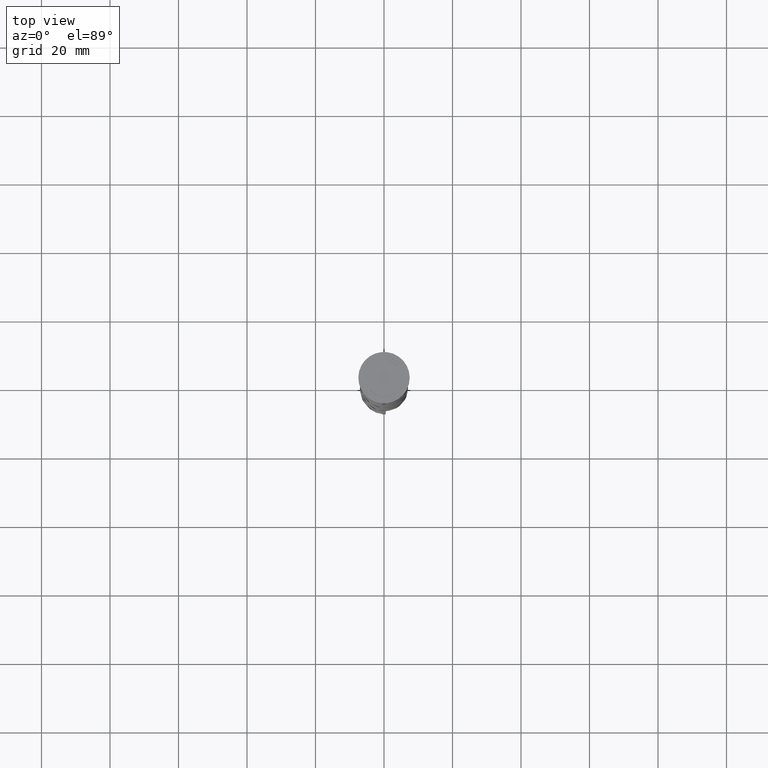
[diagram: clean part render]
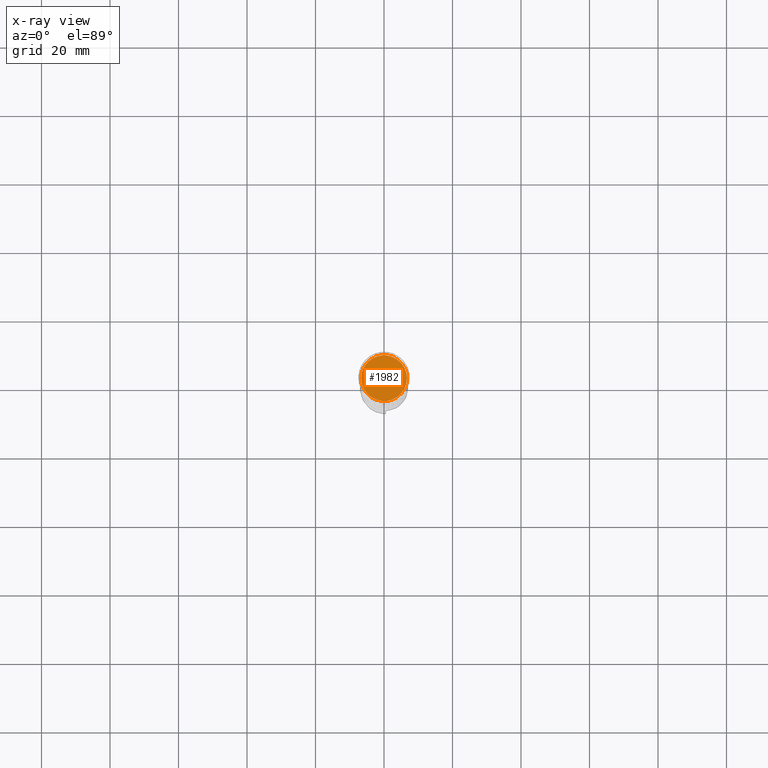
[diagram: x-ray — body ghosted, one internal face saturated and labeled with its STEP entity id]
A machine part, top view, then the same camera in x-ray: the body is ghosted and one INTERNAL B-rep face — a face not visible from any outside direction — is saturated and labeled: STEP entity #1982.
In plain terms, the highlighted planar face has unit normal (0, 0, -1).
Its self-contained STEP definition (entity closure, byte-faithful):
#136 = CIRCLE ( 'NONE', #2596, 6.700000000000001066 ) ;
#208 = AXIS2_PLACEMENT_3D ( 'NONE', #3777, #1090, #717 ) ;
#294 = DIRECTION ( 'NONE',  ( -0.000000000000000000, -0.000000000000000000, 1.000000000000000000 ) ) ;
#298 = EDGE_LOOP ( 'NONE', ( #2979, #1967 ) ) ;
#561 = CARTESIAN_POINT ( 'NONE',  ( 0.000000000000000000, 0.000000000000000000, -10.50000000000000178 ) ) ;
#684 = VERTEX_POINT ( 'NONE', #1380 ) ;
#717 = DIRECTION ( 'NONE',  ( -1.000000000000000000, 0.000000000000000000, -0.000000000000000000 ) ) ;
#829 = DIRECTION ( 'NONE',  ( -1.000000000000000000, 0.000000000000000000, 0.000000000000000000 ) ) ;
#1090 = DIRECTION ( 'NONE',  ( 0.000000000000000000, 0.000000000000000000, -1.000000000000000000 ) ) ;
#1109 = DIRECTION ( 'NONE',  ( -0.000000000000000000, -0.000000000000000000, 1.000000000000000000 ) ) ;
#1189 = CARTESIAN_POINT ( 'NONE',  ( 0.000000000000000000, 0.000000000000000000, -10.50000000000000178 ) ) ;
#1266 = CIRCLE ( 'NONE', #2711, 6.700000000000001066 ) ;
#1380 = CARTESIAN_POINT ( 'NONE',  ( -6.700000000000001066, 0.000000000000000000, -10.50000000000000178 ) ) ;
#1495 = DIRECTION ( 'NONE',  ( -1.000000000000000000, 0.000000000000000000, 0.000000000000000000 ) ) ;
#1609 = PLANE ( 'NONE',  #208 ) ;
#1967 = ORIENTED_EDGE ( 'NONE', *, *, #2316, .T. ) ;
#1982 = ADVANCED_FACE ( 'NONE', ( #3743 ), #1609, .F. ) ;
#2316 = EDGE_CURVE ( 'NONE', #2825, #684, #1266, .T. ) ;
#2596 = AXIS2_PLACEMENT_3D ( 'NONE', #1189, #294, #1495 ) ;
#2711 = AXIS2_PLACEMENT_3D ( 'NONE', #561, #1109, #829 ) ;
#2825 = VERTEX_POINT ( 'NONE', #3847 ) ;
#2979 = ORIENTED_EDGE ( 'NONE', *, *, #3038, .T. ) ;
#3038 = EDGE_CURVE ( 'NONE', #684, #2825, #136, .T. ) ;
#3743 = FACE_OUTER_BOUND ( 'NONE', #298, .T. ) ;
#3777 = CARTESIAN_POINT ( 'NONE',  ( 0.000000000000000000, 0.000000000000000000, -10.50000000000000178 ) ) ;
#3847 = CARTESIAN_POINT ( 'NONE',  ( 6.700000000000001066, 8.388830574159370862E-16, -10.50000000000000178 ) ) ;